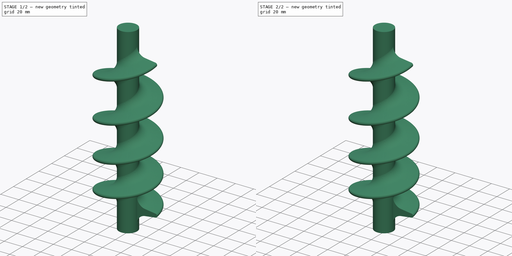
[diagram: build sequence overview — one tinted view per stage of 2, left to right]
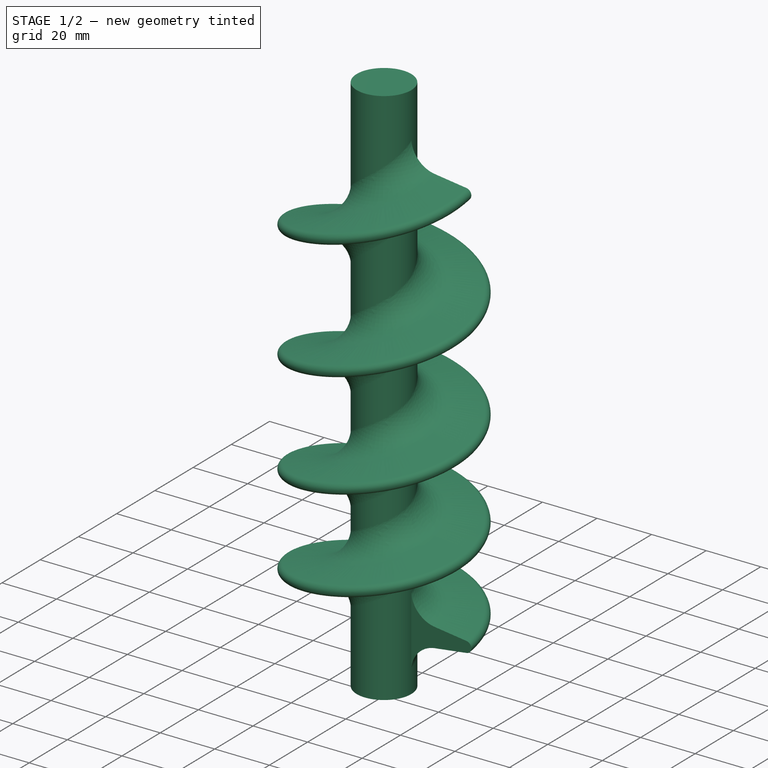
[diagram: stage 1 of 2 — iso view after this stage's code; geometry added in this stage tinted green]
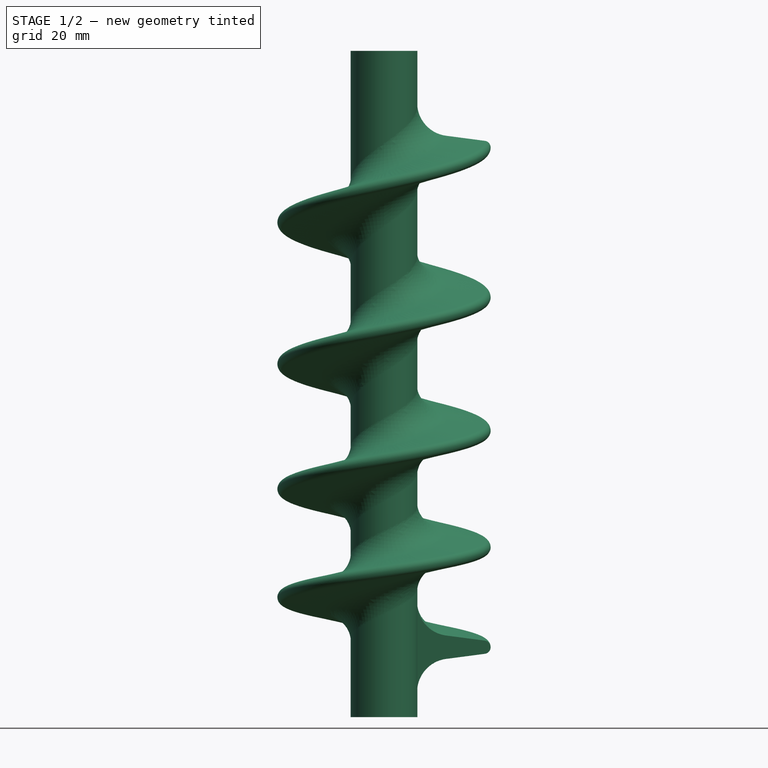
[diagram: stage 1 of 2 — front view after this stage's code; geometry added in this stage tinted green]
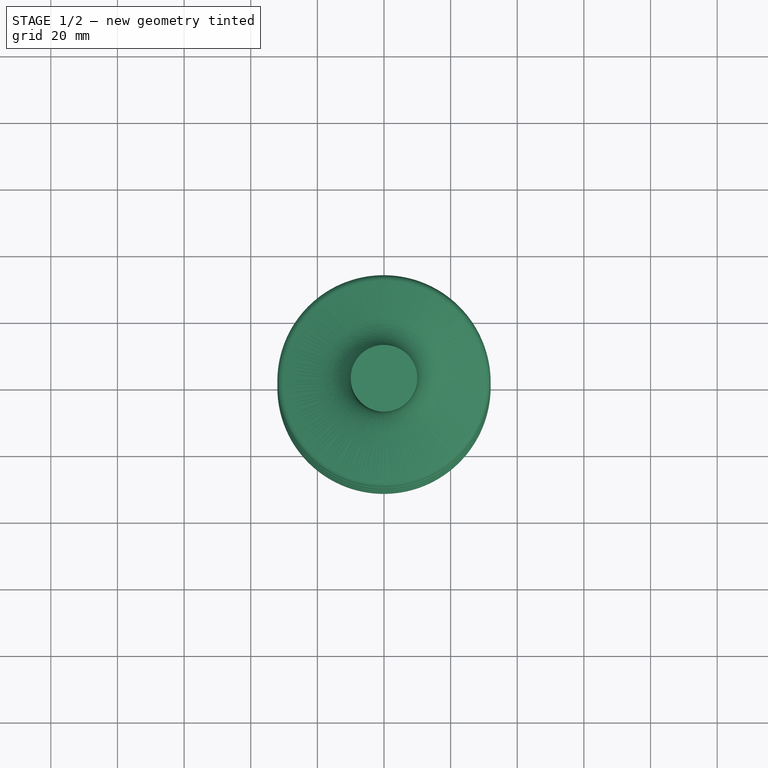
[diagram: stage 1 of 2 — top view after this stage's code; geometry added in this stage tinted green]
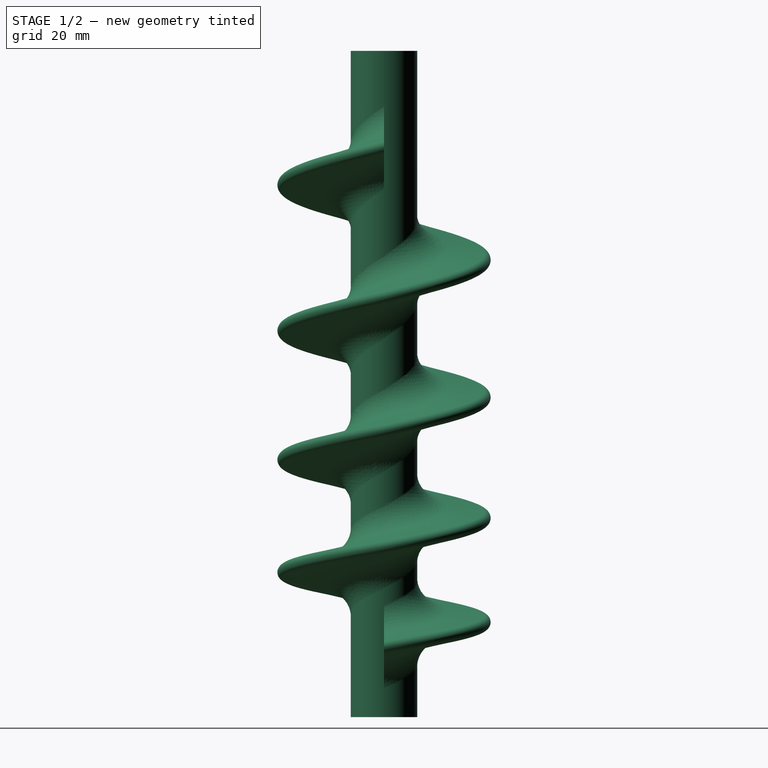
[diagram: stage 1 of 2 — right view after this stage's code; geometry added in this stage tinted green]
FCSTD DOCUMENT  (FreeCAD 0.19R24276 (Git))
Label: WORM SCREW
License: All rights reserved
LicenseURL: http://en.wikipedia.org/wiki/All_rights_reserved
objects: Part::Helix×4, App::FeaturePython×4, Part::FeaturePython×1, Sketcher::SketchObject×1, PartDesign::Body×1, Part::Sweep×1, Part::Cylinder×1, Part::Compound×1
note: 10 computed .brp shape members not serialized (recipe doc carries the construction recipe); baked Part::Feature solids carry a one-line shape summary decoded from their .brp

FEATURE [Part::Helix] Helix
  Angle = 0
  AttacherType = Attacher::AttachEngine3D
  Height = 30
  LocalCoord = 0
  Pitch = 30
  Radius = 30
  Style = 1
FEATURE [Part::Helix] Helix001
  Angle = 0
  AttacherType = Attacher::AttachEngine3D
  Height = 35
  LocalCoord = 0
  Pitch = 35
  Placement = pos=(0,0,30) rot=(0,0,1;0rad)
  Radius = 30
  Style = 1
FEATURE [Part::Helix] Helix002
  Angle = 0
  AttacherType = Attacher::AttachEngine3D
  Height = 40
  LocalCoord = 0
  Pitch = 40
  Placement = pos=(0,0,65) rot=(0,0,1;0rad)
  Radius = 30
  Style = 1
FEATURE [Part::Helix] Helix003
  Angle = 0
  AttacherType = Attacher::AttachEngine3D
  Height = 45
  LocalCoord = 0
  Pitch = 45
  Placement = pos=(0,0,105) rot=(0,0,1;0rad)
  Radius = 30
  Style = 1
FEATURE [Part::FeaturePython] Connect  # WARN: FeaturePython — macro-defined, semantics opaque (R4)
  Objects = -> [Helix003,Helix002,Helix001,Helix]
  Tolerance = 0
FEATURE [Sketcher::SketchObject] Sketch
  FullyConstrained = true
  MapMode = 5
  Placement = pos=(0,0,0) rot=(1,0,0;1.5708rad)
  Support = -> [XZ_Plane]
  sketch-geometry (7):
    g0: LineSegment StartX=18.6371 StartY=-3.51323 StartZ=0 EndX=30.2611 EndY=-1.98289 EndZ=0
    g1: ArcOfCircle CenterX=30 CenterY=0 CenterZ=0 NormalX=0 NormalY=0 NormalZ=1 AngleXU=0 Radius=2 StartAngle=4.84329 EndAngle=7.72308
    g2: LineSegment StartX=30.261 StartY=1.98289 StartZ=0 EndX=18.6371 EndY=3.51319 EndZ=0
    g3: ArcOfCircle CenterX=19.9423 CenterY=13.4276 CenterZ=0 NormalX=0 NormalY=0 NormalZ=1 AngleXU=0 Radius=10 StartAngle=3.03415 EndAngle=4.58149
    g4: LineSegment StartX=10 StartY=14.5 StartZ=0 EndX=1.8e-15 EndY=0 EndZ=0
    g5: LineSegment StartX=1.8e-15 StartY=0 StartZ=0 EndX=10 EndY=-14.5 EndZ=0
    g6: ArcOfCircle CenterX=19.9423 CenterY=-13.4277 CenterZ=0 NormalX=0 NormalY=0 NormalZ=1 AngleXU=0 Radius=10 StartAngle=1.70169 EndAngle=3.24903
  constraints (19):
    c: Tangent(g0,g1) = -1.5708
    c: Tangent(g1,g2) = -1.5708
    c: Tangent(g2,g3) = 1.5708
    c: Coincident(g3,g4)
    c: Coincident(g4,g5)
    c: Coincident(g4,g-1)
    c: Coincident(g6,g0)
    c: Coincident(g6,g5)
    c: Tangent(g6,g0)
    c: Radius(g1) = 2
    c: Equal(g3,g6)
    c: Radius(g3) = 10
    c: PointOnObject(g1,g-1)
    c: Symmetric(g5,g3,g-1)
    c: DistanceX(g-1,g5) = 10
    c: DistanceX(g-1,g1) = 30
    c: DistanceY(g5,g3) = 29
    c: Equal(g2,g0)
    c: Angle(g2,g0) = 0.261799
FEATURE [PartDesign::Body] Body
  Group = -> [Sketch]
  Origin = -> Origin
  Placement = pos=(0,0,0) rot=(1,0,0;0.15708rad)
FEATURE [Part::Sweep] Sweep
  Frenet = true
  Sections = -> [Sketch]
  Solid = true
  Spine = -> Connect [Edge1,Edge2,Edge3,Edge4]
  Transition = 0
FEATURE [Part::Cylinder] Cylinder
  Angle = 360
  AttacherType = Attacher::AttachEngine3D
  Height = 200
  Placement = pos=(0,0,-21) rot=(0,0,1;0rad)
  Radius = 10
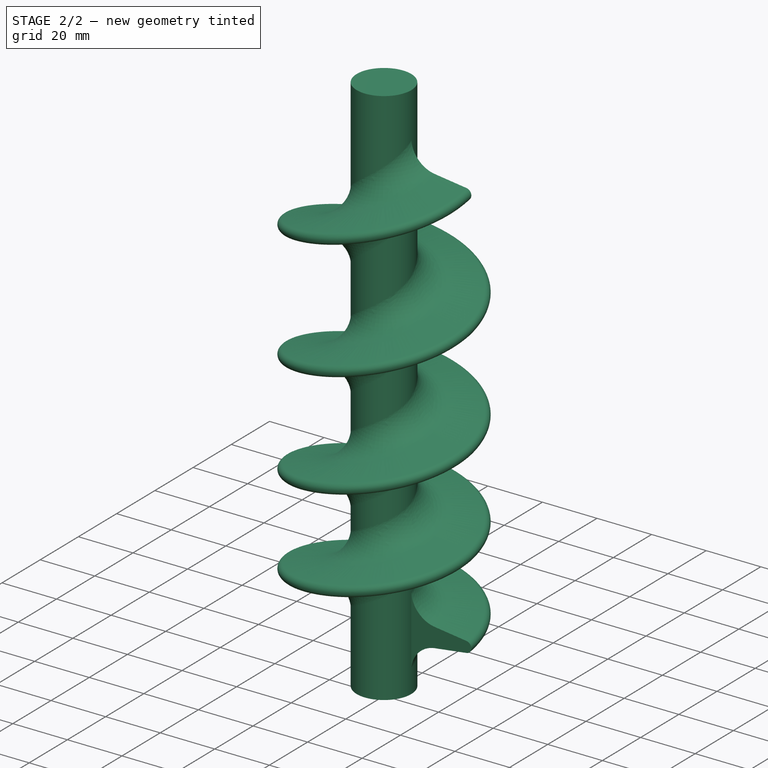
[diagram: stage 2 of 2 — iso view after this stage's code; geometry added in this stage tinted green]
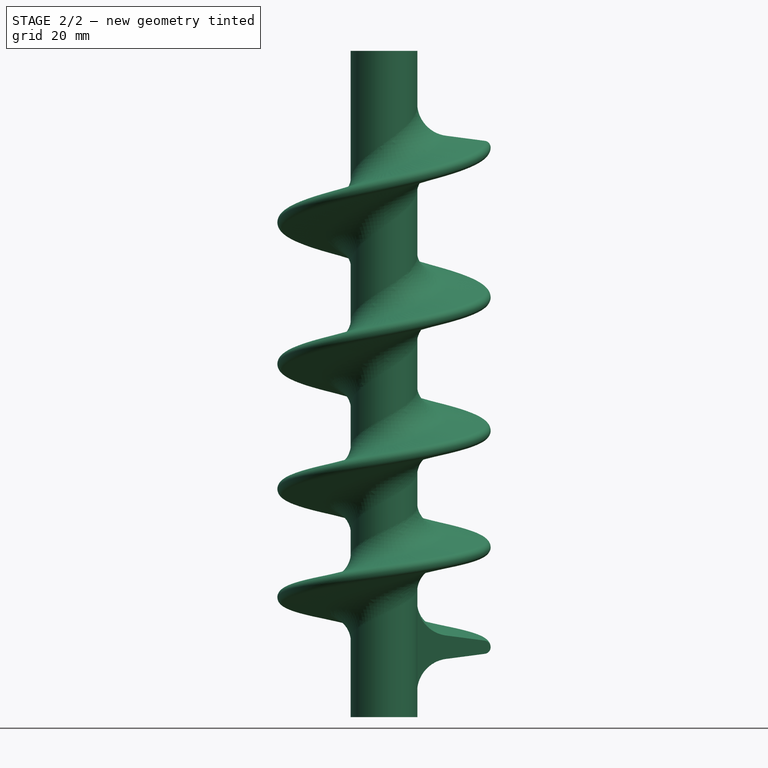
[diagram: stage 2 of 2 — front view after this stage's code; geometry added in this stage tinted green]
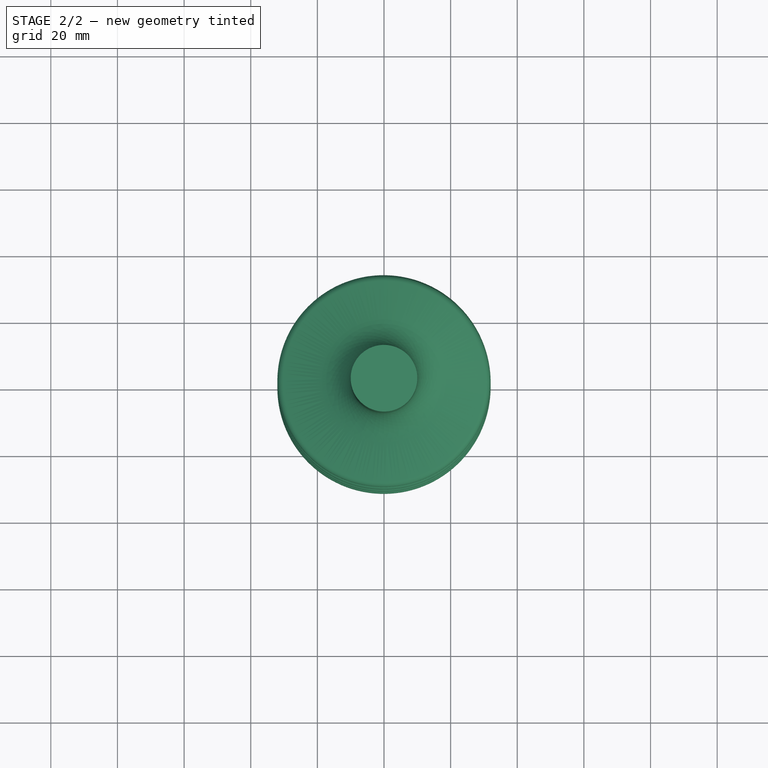
[diagram: stage 2 of 2 — top view after this stage's code; geometry added in this stage tinted green]
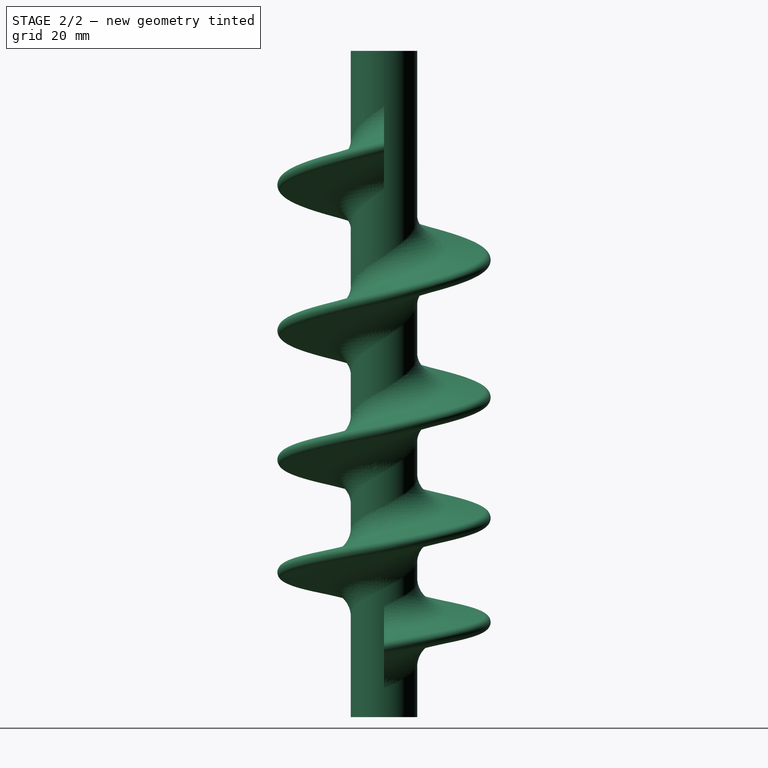
[diagram: stage 2 of 2 — right view after this stage's code; geometry added in this stage tinted green]
FEATURE [Part::Compound] Compound
  Links = -> [Cylinder,Sweep]
FEATURE [App::FeaturePython] Dimension  # Draft dimension (typed FeaturePython)
  Diameter = false
  Dimline = (53.2658,1.31925e-06,22.1334)
  Direction = (0,0,0)
  Distance = 30
  End = (30,-3.7e-15,30)
  Normal = (0,-1,0)
  Start = (30,0,0)
FEATURE [App::FeaturePython] Dimension001  # Draft dimension (typed FeaturePython)
  Diameter = false
  Dimline = (53.2325,1.78935e-06,30.0202)
  Direction = (0,0,0)
  Distance = 35
  End = (30,-3.7e-15,65)
  Normal = (0,-1,0)
  Start = (30,-3.7e-15,30)
FEATURE [App::FeaturePython] Dimension002  # Draft dimension (typed FeaturePython)
  Diameter = false
  Dimline = (53.4612,3.875e-06,65.0118)
  Direction = (0,0,0)
  Distance = 40
  End = (30,-3.7e-15,105)
  Normal = (0,-1,0)
  Start = (30,-3.7e-15,65)
FEATURE [App::FeaturePython] Dimension003  # Draft dimension (typed FeaturePython)
  Diameter = false
  Dimline = (53.4528,6.25968e-06,105.02)
  Direction = (0,0,0)
  Distance = 45
  End = (30,-3.7e-15,105)
  Normal = (0,-1,0)
  Start = (30,-7.3e-15,150)
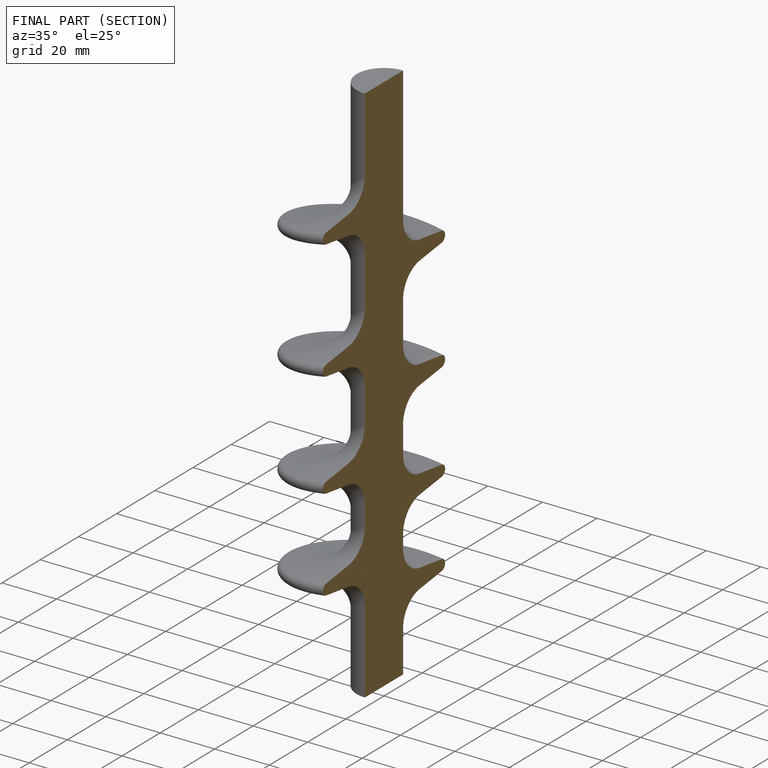
[diagram: finished part — half-section view (interior)]
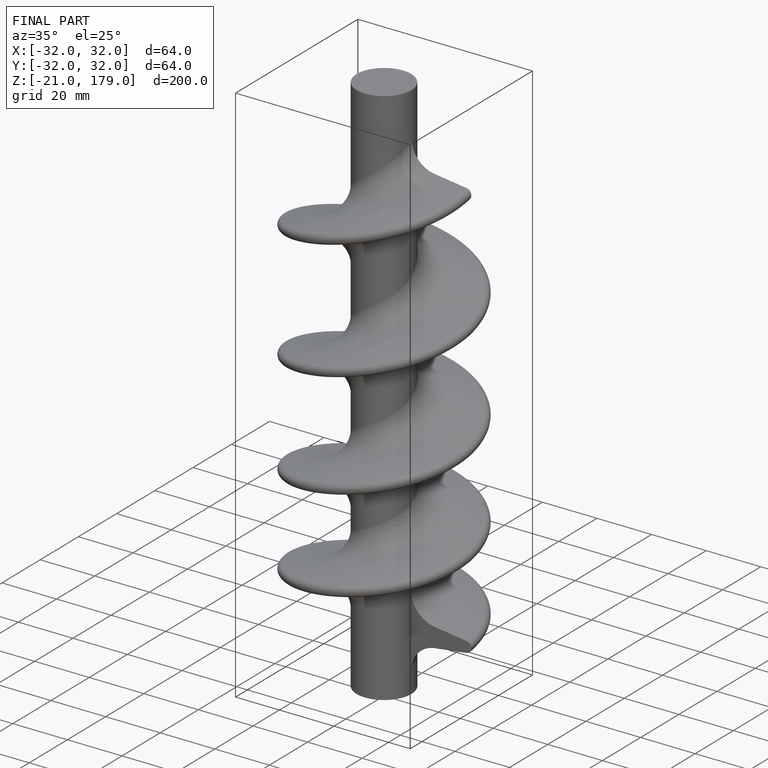
[diagram: finished part — iso view with bounding-box wireframe]
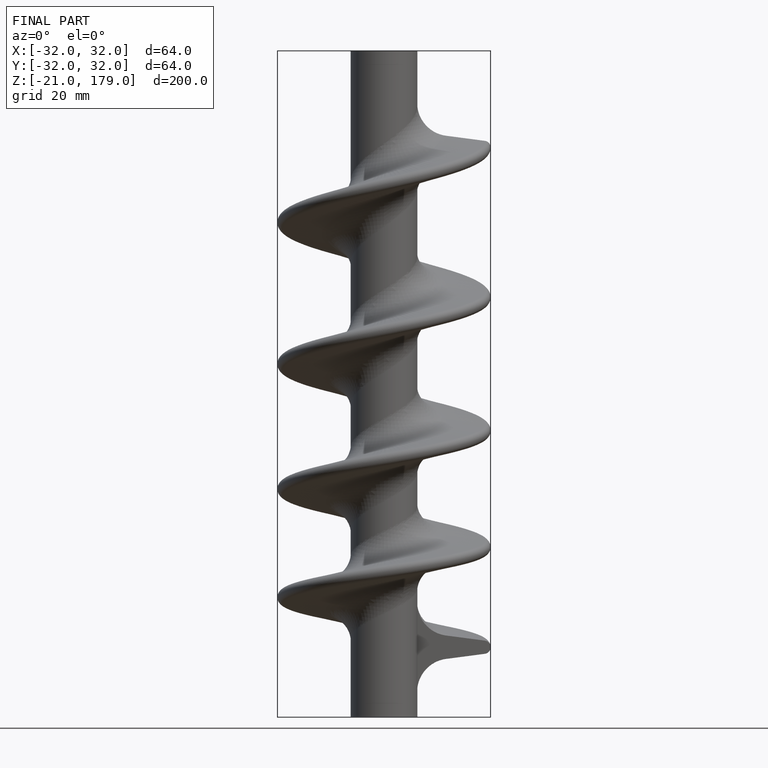
[diagram: finished part — front view with bounding-box wireframe]
